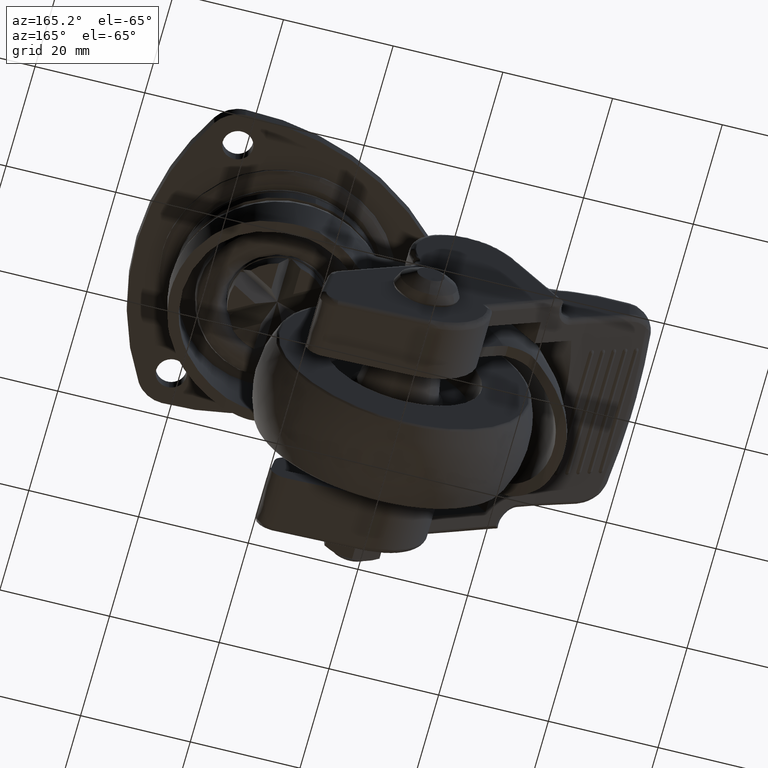
[diagram: clean part render]
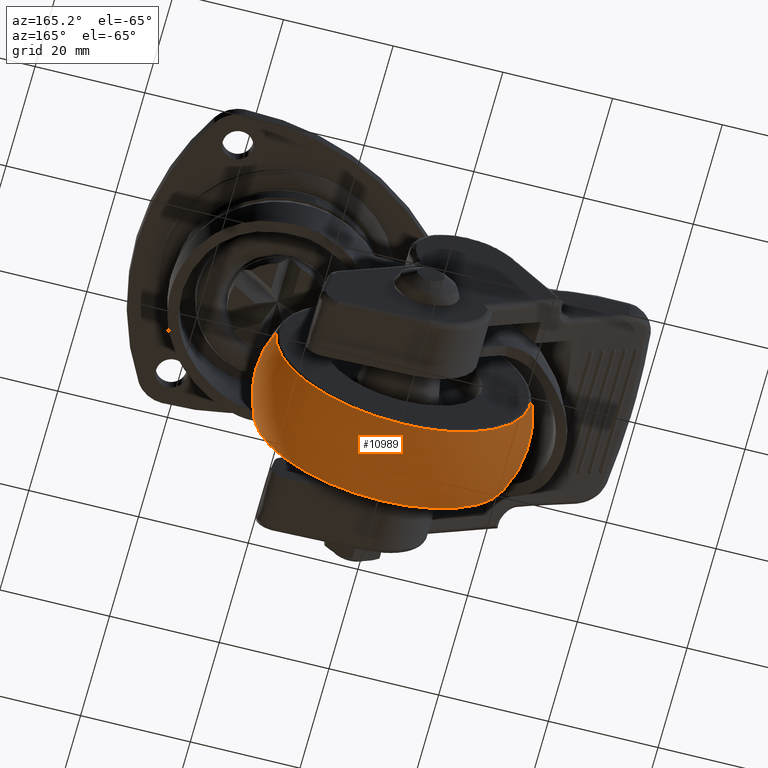
[diagram: same view with one face highlighted and labeled with its STEP entity id]
A machine part, auxiliary view. The second image highlights one B-rep face of the part: STEP entity #10989.
In plain terms, the highlighted face is a freeform B-spline surface patch.
Its self-contained STEP definition (entity closure, byte-faithful):
#10347=CARTESIAN_POINT('',(-8.413028593978995,7.714285718532343,-66.688585090701650));
#10348=VERTEX_POINT('',#10347);
#10362=CARTESIAN_POINT('',(-21.171924386812780,7.714285721941437,-35.360322038173152));
#10363=VERTEX_POINT('',#10362);
#10364=CARTESIAN_POINT('',(-8.413028593978995,7.714285718532343,-66.688585090701650));
#10365=CARTESIAN_POINT('',(-23.263141949676708,7.714285718029690,-60.928208018717896));
#10366=CARTESIAN_POINT('',(-23.263141949676701,7.714285718029690,-45.0));
#10367=CARTESIAN_POINT('',(-23.263141949676701,7.714285718029691,-39.953328192760928));
#10368=CARTESIAN_POINT('',(-21.171924386812783,7.714285721941437,-35.360322038173152));
#10376=(BOUNDED_CURVE()B_SPLINE_CURVE(2,(#10364,#10365,#10366,#10367,#10368),.UNSPECIFIED.,.F.,.U.)B_SPLINE_CURVE_WITH_KNOTS((3,2,3),(0.561409344290420,0.750000000000000,0.820375489890874),.UNSPECIFIED.)CURVE()GEOMETRIC_REPRESENTATION_ITEM()RATIONAL_B_SPLINE_CURVE((0.891453974558045,0.779052303244326,1.0,0.917549984961153,0.881519651521257))REPRESENTATION_ITEM(''));
#10377=EDGE_CURVE('',#10348,#10363,#10376,.T.);
#10470=CARTESIAN_POINT('',(0.0,7.714285776253419,-21.736857927520191));
#10471=VERTEX_POINT('',#10470);
#10472=CARTESIAN_POINT('',(-21.171924386812783,7.714285721941437,-35.360322038173152));
#10473=CARTESIAN_POINT('',(-14.969096384184027,7.714285738788292,-21.736858006540107));
#10474=CARTESIAN_POINT('',(0.0,7.714285776253419,-21.736857927520191));
#10482=(BOUNDED_CURVE()B_SPLINE_CURVE(2,(#10472,#10473,#10474),.UNSPECIFIED.,.F.,.U.)B_SPLINE_CURVE_WITH_KNOTS((3,3),(0.820375489890875,1.0),.UNSPECIFIED.)CURVE()GEOMETRIC_REPRESENTATION_ITEM()RATIONAL_B_SPLINE_CURVE((0.881519651521256,0.789556796225395,1.0))REPRESENTATION_ITEM(''));
#10483=EDGE_CURVE('',#10363,#10471,#10482,.T.);
#10485=CARTESIAN_POINT('',(23.107549775324749,7.714285776202237,-42.313939228833618));
#10486=VERTEX_POINT('',#10485);
#10500=CARTESIAN_POINT('',(0.0,7.714285718029690,-68.263141949676694));
#10501=VERTEX_POINT('',#10500);
#10502=CARTESIAN_POINT('',(23.107549775324749,7.714285776202238,-42.313939228833618));
#10503=CARTESIAN_POINT('',(23.263141949676704,7.714285718029689,-43.652463215104518));
#10504=CARTESIAN_POINT('',(23.263141949676701,7.714285718029690,-45.0));
#10505=CARTESIAN_POINT('',(23.263141949676701,7.714285718029690,-68.263141949676708));
#10506=CARTESIAN_POINT('',(0.0,7.714285718029690,-68.263141949676694));
#10514=(BOUNDED_CURVE()B_SPLINE_CURVE(2,(#10502,#10503,#10504,#10505,#10506),.UNSPECIFIED.,.F.,.U.)B_SPLINE_CURVE_WITH_KNOTS((3,2,3),(0.229999999999437,0.250000000000000,0.500000000000000),.UNSPECIFIED.)CURVE()GEOMETRIC_REPRESENTATION_ITEM()RATIONAL_B_SPLINE_CURVE((0.956886118189551,0.976568542494264,1.0,0.707106781186548,1.0))REPRESENTATION_ITEM(''));
#10515=EDGE_CURVE('',#10486,#10501,#10514,.T.);
#10517=CARTESIAN_POINT('',(0.0,7.714285718029690,-68.263141949676694));
#10518=CARTESIAN_POINT('',(-4.353858934815966,7.714285718029689,-68.263141949676694));
#10519=CARTESIAN_POINT('',(-8.413028593978995,7.714285718532343,-66.688585090701650));
#10527=(BOUNDED_CURVE()B_SPLINE_CURVE(2,(#10517,#10518,#10519),.UNSPECIFIED.,.F.,.U.)B_SPLINE_CURVE_WITH_KNOTS((3,3),(0.500000000000000,0.561409344290420),.UNSPECIFIED.)CURVE()GEOMETRIC_REPRESENTATION_ITEM()RATIONAL_B_SPLINE_CURVE((1.0,0.928054477942222,0.891453974558045))REPRESENTATION_ITEM(''));
#10528=EDGE_CURVE('',#10501,#10348,#10527,.T.);
#10563=CARTESIAN_POINT('',(-20.307174399721191,-7.714286617588055,-56.348675786152441));
#10564=VERTEX_POINT('',#10563);
#10565=CARTESIAN_POINT('',(0.0,-7.714289103665771,-21.736859355431040));
#10566=VERTEX_POINT('',#10565);
#10567=CARTESIAN_POINT('',(-20.307174399721195,-7.714286617588055,-56.348675786152441));
#10568=CARTESIAN_POINT('',(-23.263142188361350,-7.714287052508189,-51.059305906439384));
#10569=CARTESIAN_POINT('',(-23.263142188361350,-7.714287476367421,-45.000000771896197));
#10570=CARTESIAN_POINT('',(-23.263142188361350,-7.714289103665772,-21.736859355431033));
#10571=CARTESIAN_POINT('',(0.0,-7.714289103665771,-21.736859355431040));
#10579=(BOUNDED_CURVE()B_SPLINE_CURVE(2,(#10567,#10568,#10569,#10570,#10571),.UNSPECIFIED.,.F.,.U.)B_SPLINE_CURVE_WITH_KNOTS((3,2,3),(0.666878559323496,0.750000000000000,1.0),.UNSPECIFIED.)CURVE()GEOMETRIC_REPRESENTATION_ITEM()RATIONAL_B_SPLINE_CURVE((0.869991155357281,0.902617174751389,1.0,0.707106781186547,1.0))REPRESENTATION_ITEM(''));
#10580=EDGE_CURVE('',#10564,#10566,#10579,.T.);
#10683=CARTESIAN_POINT('',(0.0,-7.714285849069070,-68.263142188361357));
#10684=VERTEX_POINT('',#10683);
#10685=CARTESIAN_POINT('',(0.0,-7.714285849069070,-68.263142188361357));
#10686=CARTESIAN_POINT('',(-13.648768663127660,-7.714285849069070,-68.263142188361357));
#10687=CARTESIAN_POINT('',(-20.307174399721191,-7.714286617588055,-56.348675786152441));
#10695=(BOUNDED_CURVE()B_SPLINE_CURVE(2,(#10685,#10686,#10687),.UNSPECIFIED.,.F.,.U.)B_SPLINE_CURVE_WITH_KNOTS((3,3),(0.500000000000000,0.666878559323496),.UNSPECIFIED.)CURVE()GEOMETRIC_REPRESENTATION_ITEM()RATIONAL_B_SPLINE_CURVE((1.0,0.804489606435159,0.869991155357280))REPRESENTATION_ITEM(''));
#10696=EDGE_CURVE('',#10684,#10564,#10695,.T.);
#10698=CARTESIAN_POINT('',(23.107549890422050,-7.714285849040151,-42.313939215465894));
#10699=VERTEX_POINT('',#10698);
#10700=CARTESIAN_POINT('',(23.107549890422050,-7.714285849040151,-42.313939215465894));
#10701=CARTESIAN_POINT('',(23.263142188361346,-7.714285849069070,-43.652463201289848));
#10702=CARTESIAN_POINT('',(23.263142188361350,-7.714285849069070,-45.0));
#10703=CARTESIAN_POINT('',(23.263142188361350,-7.714285849069070,-68.263142188361357));
#10704=CARTESIAN_POINT('',(0.0,-7.714285849069070,-68.263142188361357));
#10712=(BOUNDED_CURVE()B_SPLINE_CURVE(2,(#10700,#10701,#10702,#10703,#10704),.UNSPECIFIED.,.F.,.U.)B_SPLINE_CURVE_WITH_KNOTS((3,2,3),(0.229999999999601,0.250000000000000,0.500000000000000),.UNSPECIFIED.)CURVE()GEOMETRIC_REPRESENTATION_ITEM()RATIONAL_B_SPLINE_CURVE((0.956886118189875,0.976568542494456,1.0,0.707106781186547,1.0))REPRESENTATION_ITEM(''));
#10713=EDGE_CURVE('',#10699,#10684,#10712,.T.);
#10919=CARTESIAN_POINT('',(22.766540704629659,8.399928373658034,-42.353579270665129));
#10920=CARTESIAN_POINT('',(27.169028296103910,-0.000001168254436,-41.841826757454022));
#10921=CARTESIAN_POINT('',(22.766539746725229,-8.399930201335762,-42.353579382013514));
#10922=CARTESIAN_POINT('',(22.919836786770805,8.399928373658032,-43.672349734953272));
#10923=CARTESIAN_POINT('',(27.351968060533192,-0.000001168254437,-43.415614911094117));
#10924=CARTESIAN_POINT('',(22.919835822416434,-8.399930201335764,-43.672349790814287));
#10925=CARTESIAN_POINT('',(22.919836786770809,8.399928373658034,-45.0));
#10926=CARTESIAN_POINT('',(27.351968060533189,-0.000001168254436,-44.999999999999986));
#10927=CARTESIAN_POINT('',(22.919835822416438,-8.399930201335764,-45.000000000000007));
#10928=CARTESIAN_POINT('',(22.919836786770809,8.399928373658032,-67.919836786770801));
#10929=CARTESIAN_POINT('',(27.351968060533192,-0.000001168254436,-72.351968060533196));
#10930=CARTESIAN_POINT('',(22.919835822416438,-8.399930201335765,-67.919835822416445));
#10931=CARTESIAN_POINT('',(0.0,8.399928373658034,-67.919836786770830));
#10932=CARTESIAN_POINT('',(0.0,-0.000001168254436,-72.351968060533167));
#10933=CARTESIAN_POINT('',(0.0,-8.399930201335764,-67.919835822416431));
#10934=CARTESIAN_POINT('',(-22.919836786770809,8.399928373658032,-67.919836786770801));
#10935=CARTESIAN_POINT('',(-27.351968060533192,-0.000001168254436,-72.351968060533196));
#10936=CARTESIAN_POINT('',(-22.919835822416438,-8.399930201335765,-67.919835822416445));
#10937=CARTESIAN_POINT('',(-22.919836786770809,8.399928373658034,-45.0));
#10938=CARTESIAN_POINT('',(-27.351968060533189,-0.000001168254436,-44.999999999999986));
#10939=CARTESIAN_POINT('',(-22.919835822416438,-8.399930201335764,-45.000000000000007));
#10940=CARTESIAN_POINT('',(-22.919836786770809,8.399928373658032,-22.080163213229184));
#10941=CARTESIAN_POINT('',(-27.351968060533192,-0.000001168254436,-17.648031939466811));
#10942=CARTESIAN_POINT('',(-22.919835822416438,-8.399930201335765,-22.080164177583566));
#10943=CARTESIAN_POINT('',(0.0,8.399928373658034,-22.080163213229191));
#10944=CARTESIAN_POINT('',(0.0,-0.000001168254436,-17.648031939466804));
#10945=CARTESIAN_POINT('',(0.0,-8.399930201335764,-22.080164177583558));
#10953=(BOUNDED_SURFACE()B_SPLINE_SURFACE(2,2,((#10919,#10922,#10925,#10928,#10931,#10934,#10937,#10940,#10943),(#10920,#10923,#10926,#10929,#10932,#10935,#10938,#10941,#10944),(#10921,#10924,#10927,#10930,#10933,#10936,#10939,#10942,#10945)),.UNSPECIFIED.,.F.,.F.,.U.)B_SPLINE_SURFACE_WITH_KNOTS((3,3),(3,2,2,2,3),(0.0,17.830124628811252),(0.0,3.313707807691320,44.735064045001103,86.156420282310876,127.577776519620700),.UNSPECIFIED.)GEOMETRIC_REPRESENTATION_ITEM()RATIONAL_B_SPLINE_SURFACE(((0.909942052053561,0.928658869072869,0.950940793210450,0.672416683386024,0.950940793210450,0.672416683386024,0.950940793210450,0.672416683386024,0.950940793210450),(0.804784928960096,0.821338743811546,0.841045665470665,0.594709093341860,0.841045665470665,0.594709093341860,0.841045665470665,0.594709093341860,0.841045665470665),(0.909942077923574,0.928658895475009,0.950940820246074,0.672416702503097,0.950940820246074,0.672416702503097,0.950940820246074,0.672416702503097,0.950940820246074)))REPRESENTATION_ITEM('')SURFACE());
#10954=ORIENTED_EDGE('',*,*,#10515,.F.);
#10955=CARTESIAN_POINT('',(23.107549775324745,7.714285776202237,-42.313939228833618));
#10956=CARTESIAN_POINT('',(26.742282935999423,-8.964824E-009,-41.891431682580112));
#10957=CARTESIAN_POINT('',(23.107549890422060,-7.714285849040151,-42.313939215465894));
#10965=(BOUNDED_CURVE()B_SPLINE_CURVE(2,(#10955,#10956,#10957),.UNSPECIFIED.,.F.,.U.)B_SPLINE_CURVE_WITH_KNOTS((3,3),(0.389861575115871,0.610138425115414),.UNSPECIFIED.)CURVE()GEOMETRIC_REPRESENTATION_ITEM()RATIONAL_B_SPLINE_CURVE((0.900824724429173,0.813902254712165,0.900824724611706))REPRESENTATION_ITEM(''));
#10966=EDGE_CURVE('',#10486,#10699,#10965,.T.);
#10967=ORIENTED_EDGE('',*,*,#10966,.T.);
#10968=ORIENTED_EDGE('',*,*,#10713,.T.);
#10969=ORIENTED_EDGE('',*,*,#10696,.T.);
#10970=ORIENTED_EDGE('',*,*,#10580,.T.);
#10971=CARTESIAN_POINT('',(0.0,7.714285776253419,-21.736857927520191));
#10972=CARTESIAN_POINT('',(0.0,-0.000002002378520,-18.077649721288005));
#10973=CARTESIAN_POINT('',(0.0,-7.714289103665771,-21.736859355431037));
#10981=(BOUNDED_CURVE()B_SPLINE_CURVE(2,(#10971,#10972,#10973),.UNSPECIFIED.,.F.,.U.)B_SPLINE_CURVE_WITH_KNOTS((3,3),(0.389861575114253,0.610138476545372),.UNSPECIFIED.)CURVE()GEOMETRIC_REPRESENTATION_ITEM()RATIONAL_B_SPLINE_CURVE((0.941412679424993,0.850573771470273,0.941412722032321))REPRESENTATION_ITEM(''));
#10982=EDGE_CURVE('',#10471,#10566,#10981,.T.);
#10983=ORIENTED_EDGE('',*,*,#10982,.F.);
#10984=ORIENTED_EDGE('',*,*,#10483,.F.);
#10985=ORIENTED_EDGE('',*,*,#10377,.F.);
#10986=ORIENTED_EDGE('',*,*,#10528,.F.);
#10987=EDGE_LOOP('',(#10954,#10967,#10968,#10969,#10970,#10983,#10984,#10985,#10986));
#10988=FACE_OUTER_BOUND('',#10987,.T.);
#10989=ADVANCED_FACE('',(#10988),#10953,.T.);